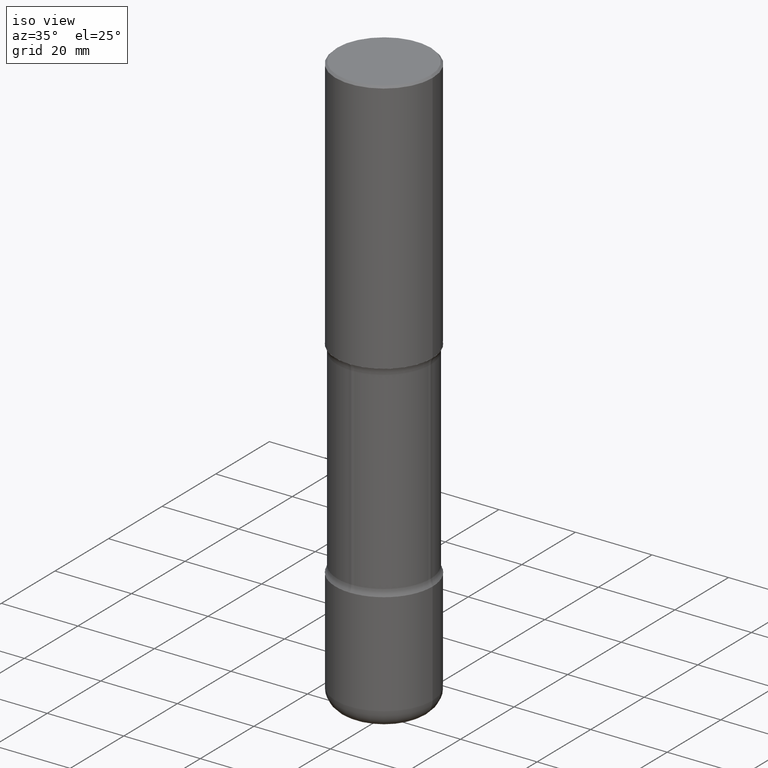
[diagram: clean part render]
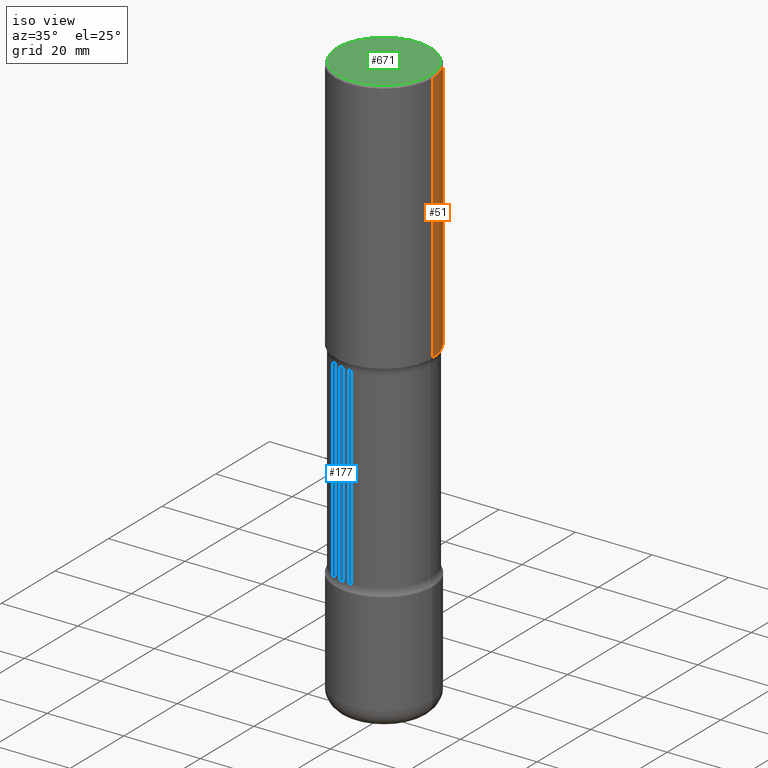
[diagram: same view with three faces highlighted in distinct colors, each labeled with its STEP entity id]
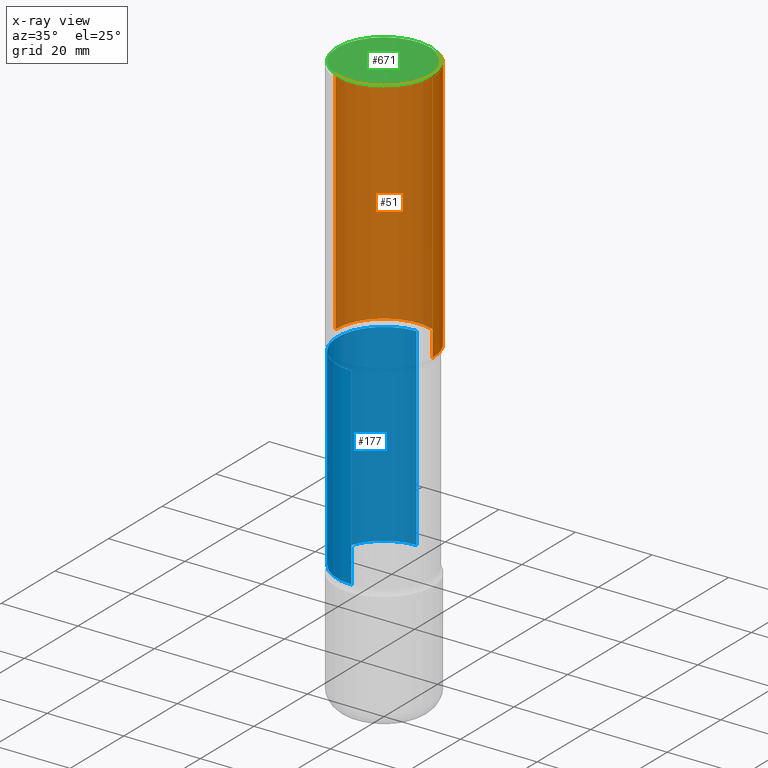
[diagram: x-ray of the same camera — body ghosted, the three highlighted faces saturated]
A machine part, iso view with three faces highlighted in distinct colors.
The next image is the same camera in x-ray (body ghosted, the three faces saturated) — at least one of them is partly hidden behind the body in this view.
Their STEP definitions:

[orange] entity #51 — the highlighted cylindrical surface (partial cylindrical patch) has radius 12.7 mm, axis along (-0, 0, 1).
#7 = VECTOR ( 'NONE', #96, 39.37007874015748143 ) ;
#12 = AXIS2_PLACEMENT_3D ( 'NONE', #806, #260, #743 ) ;
#51 = ADVANCED_FACE ( 'NONE', ( #625 ), #433, .T. ) ;
#55 = ORIENTED_EDGE ( 'NONE', *, *, #578, .T. ) ;
#61 = CARTESIAN_POINT ( 'NONE',  ( 0.000000000000000000, 0.000000000000000000, 0.000000000000000000 ) ) ;
#85 = EDGE_CURVE ( 'NONE', #553, #125, #286, .T. ) ;
#96 = DIRECTION ( 'NONE',  ( -2.445468806185136877E-29, 3.491481338843145188E-15, 1.000000000000000000 ) ) ;
#107 = VERTEX_POINT ( 'NONE', #488 ) ;
#115 = VECTOR ( 'NONE', #591, 39.37007874015748143 ) ;
#125 = VERTEX_POINT ( 'NONE', #441 ) ;
#174 = AXIS2_PLACEMENT_3D ( 'NONE', #61, #317, #554 ) ;
#210 = DIRECTION ( 'NONE',  ( 1.000000000000000000, -6.982962677686266711E-15, 0.000000000000000000 ) ) ;
#238 = CARTESIAN_POINT ( 'NONE',  ( 0.4999999999999998335, -3.491481338843132566E-15, 2.438088387897967336E-29 ) ) ;
#243 = EDGE_LOOP ( 'NONE', ( #539, #55, #259, #670 ) ) ;
#259 = ORIENTED_EDGE ( 'NONE', *, *, #85, .F. ) ;
#260 = DIRECTION ( 'NONE',  ( -2.445468806185136597E-29, 3.491481338843145583E-15, 1.000000000000000000 ) ) ;
#286 = CIRCLE ( 'NONE', #12, 0.4999999999999996669 ) ;
#317 = DIRECTION ( 'NONE',  ( -2.445468806185136597E-29, 3.491481338843145583E-15, 1.000000000000000000 ) ) ;
#353 = CARTESIAN_POINT ( 'NONE',  ( -0.4999999999999998335, 3.552713678800499746E-15, -2.459467545127452330E-29 ) ) ;
#407 = LINE ( 'NONE', #353, #7 ) ;
#410 = CARTESIAN_POINT ( 'NONE',  ( -0.5000000000000000000, -1.064770391819559223E-15, -2.625000000000000444 ) ) ;
#433 = CYLINDRICAL_SURFACE ( 'NONE', #174, 0.4999999999999998335 ) ;
#441 = CARTESIAN_POINT ( 'NONE',  ( -0.4999999999999996669, 3.421651712066267691E-15, -0.02000000000000010797 ) ) ;
#452 = CIRCLE ( 'NONE', #461, 0.5000000000000000000 ) ;
#461 = AXIS2_PLACEMENT_3D ( 'NONE', #683, #763, #210 ) ;
#488 = CARTESIAN_POINT ( 'NONE',  ( 0.5000000000000000000, -1.265661985330639155E-14, -2.625000000000000444 ) ) ;
#497 = EDGE_CURVE ( 'NONE', #107, #687, #452, .T. ) ;
#539 = ORIENTED_EDGE ( 'NONE', *, *, #497, .T. ) ;
#553 = VERTEX_POINT ( 'NONE', #760 ) ;
#554 = DIRECTION ( 'NONE',  ( 1.000000000000000000, -6.982962677686267499E-15, 4.876176775795936353E-29 ) ) ;
#578 = EDGE_CURVE ( 'NONE', #687, #125, #407, .T. ) ;
#582 = EDGE_CURVE ( 'NONE', #107, #553, #707, .T. ) ;
#591 = DIRECTION ( 'NONE',  ( -2.445468806185136877E-29, 3.491481338843145188E-15, 1.000000000000000000 ) ) ;
#625 = FACE_OUTER_BOUND ( 'NONE', #243, .T. ) ;
#670 = ORIENTED_EDGE ( 'NONE', *, *, #582, .F. ) ;
#683 = CARTESIAN_POINT ( 'NONE',  ( 6.419355616235984688E-29, -9.165138514463258190E-15, -2.625000000000000444 ) ) ;
#687 = VERTEX_POINT ( 'NONE', #410 ) ;
#707 = LINE ( 'NONE', #238, #115 ) ;
#743 = DIRECTION ( 'NONE',  ( 1.000000000000000000, -6.982962677686266711E-15, 0.000000000000000000 ) ) ;
#760 = CARTESIAN_POINT ( 'NONE',  ( 0.4999999999999996669, -3.500078625662626713E-15, -0.02000000000000010797 ) ) ;
#763 = DIRECTION ( 'NONE',  ( -2.445468806185136597E-29, 3.491481338843145583E-15, 1.000000000000000000 ) ) ;
#806 = CARTESIAN_POINT ( 'NONE',  ( 4.890937612370299433E-31, -6.982962677686328587E-17, -0.02000000000000010797 ) ) ;

[blue] entity #177 — the highlighted cylindrical surface (partial cylindrical patch) has radius 12.192 mm, axis along (0, -0, -1).
#33 = EDGE_CURVE ( 'NONE', #311, #494, #176, .T. ) ;
#40 = ORIENTED_EDGE ( 'NONE', *, *, #392, .T. ) ;
#42 = DIRECTION ( 'NONE',  ( 6.982962677686265922E-15, 1.000000000000000000, -2.276539994720218757E-15 ) ) ;
#45 = VERTEX_POINT ( 'NONE', #636 ) ;
#113 = CIRCLE ( 'NONE', #464, 0.4800000000000001488 ) ;
#176 = LINE ( 'NONE', #678, #702 ) ;
#177 = ADVANCED_FACE ( 'NONE', ( #196 ), #316, .T. ) ;
#179 = ORIENTED_EDGE ( 'NONE', *, *, #226, .F. ) ;
#193 = DIRECTION ( 'NONE',  ( 2.513195084323527144E-29, -3.394493453808608059E-15, -1.000000000000000000 ) ) ;
#196 = FACE_OUTER_BOUND ( 'NONE', #620, .T. ) ;
#213 = DIRECTION ( 'NONE',  ( 2.513195084323526863E-29, -3.394493453808608059E-15, -1.000000000000000000 ) ) ;
#218 = AXIS2_PLACEMENT_3D ( 'NONE', #581, #213, #753 ) ;
#226 = EDGE_CURVE ( 'NONE', #494, #45, #113, .T. ) ;
#311 = VERTEX_POINT ( 'NONE', #476 ) ;
#316 = CYLINDRICAL_SURFACE ( 'NONE', #538, 0.4800000000000001488 ) ;
#392 = EDGE_CURVE ( 'NONE', #311, #727, #677, .T. ) ;
#418 = DIRECTION ( 'NONE',  ( 2.513195084323527144E-29, -3.394493453808608059E-15, -1.000000000000000000 ) ) ;
#420 = LINE ( 'NONE', #435, #736 ) ;
#435 = CARTESIAN_POINT ( 'NONE',  ( 3.351822085289556248E-15, 0.4799999999999793321, -5.990920599932145763 ) ) ;
#464 = AXIS2_PLACEMENT_3D ( 'NONE', #523, #701, #773 ) ;
#470 = ORIENTED_EDGE ( 'NONE', *, *, #722, .T. ) ;
#476 = CARTESIAN_POINT ( 'NONE',  ( -3.361644018907988919E-15, -0.4800000000000097522, -2.692823299831252459 ) ) ;
#494 = VERTEX_POINT ( 'NONE', #514 ) ;
#514 = CARTESIAN_POINT ( 'NONE',  ( -3.361644018907934882E-15, -0.4800000000000164690, -4.682176700168746208 ) ) ;
#523 = CARTESIAN_POINT ( 'NONE',  ( 1.144552364564089489E-28, -1.635431061221206023E-14, -4.682176700168747985 ) ) ;
#538 = AXIS2_PLACEMENT_3D ( 'NONE', #600, #649, #42 ) ;
#581 = CARTESIAN_POINT ( 'NONE',  ( 6.445890458930413557E-29, -9.601463517454541281E-15, -2.692823299831254236 ) ) ;
#600 = CARTESIAN_POINT ( 'NONE',  ( 1.473465238116466876E-28, -2.079683321267085678E-14, -5.990920599932144874 ) ) ;
#620 = EDGE_LOOP ( 'NONE', ( #723, #40, #470, #179 ) ) ;
#636 = CARTESIAN_POINT ( 'NONE',  ( 3.351822085289523116E-15, 0.4799999999999838285, -4.682176700168749761 ) ) ;
#649 = DIRECTION ( 'NONE',  ( 2.513195084323526863E-29, -3.394493453808608059E-15, -1.000000000000000000 ) ) ;
#677 = CIRCLE ( 'NONE', #218, 0.4800000000000001488 ) ;
#678 = CARTESIAN_POINT ( 'NONE',  ( -3.293039038930187996E-15, -0.4800000000000209655, -5.990920599932143986 ) ) ;
#701 = DIRECTION ( 'NONE',  ( 2.513195084323526863E-29, -3.394493453808608059E-15, -1.000000000000000000 ) ) ;
#702 = VECTOR ( 'NONE', #418, 39.37007874015748143 ) ;
#722 = EDGE_CURVE ( 'NONE', #727, #45, #420, .T. ) ;
#723 = ORIENTED_EDGE ( 'NONE', *, *, #33, .F. ) ;
#727 = VERTEX_POINT ( 'NONE', #793 ) ;
#736 = VECTOR ( 'NONE', #193, 39.37007874015748143 ) ;
#753 = DIRECTION ( 'NONE',  ( 6.982962677686265922E-15, 1.000000000000000000, -3.414809992080327938E-15 ) ) ;
#773 = DIRECTION ( 'NONE',  ( 6.982962677686265922E-15, 1.000000000000000000, -3.414809992080327938E-15 ) ) ;
#793 = CARTESIAN_POINT ( 'NONE',  ( 3.351822085289473418E-15, 0.4799999999999904898, -2.692823299831256012 ) ) ;

[green] entity #671 — the highlighted planar face has unit normal (0, -0, -1).
#8 = EDGE_LOOP ( 'NONE', ( #787, #21 ) ) ;
#21 = ORIENTED_EDGE ( 'NONE', *, *, #271, .T. ) ;
#22 = CARTESIAN_POINT ( 'NONE',  ( -0.4799999999999996492, 3.386736898677836436E-15, 1.280553747027767124E-17 ) ) ;
#92 = DIRECTION ( 'NONE',  ( 2.438088387897960049E-29, -3.491481338843145188E-15, -1.000000000000000000 ) ) ;
#147 = DIRECTION ( 'NONE',  ( 1.000000000000000000, -6.982962677686267499E-15, 4.876036955247132767E-29 ) ) ;
#234 = CARTESIAN_POINT ( 'NONE',  ( -3.131554243005659264E-46, 4.471029511141341874E-32, 1.280553747030123384E-17 ) ) ;
#244 = CIRCLE ( 'NONE', #784, 0.4799999999999996492 ) ;
#271 = EDGE_CURVE ( 'NONE', #363, #537, #605, .T. ) ;
#363 = VERTEX_POINT ( 'NONE', #791 ) ;
#408 = PLANE ( 'NONE',  #749 ) ;
#463 = DIRECTION ( 'NONE',  ( -1.000000000000000000, 6.982962677686265922E-15, -4.876176775795935793E-29 ) ) ;
#465 = DIRECTION ( 'NONE',  ( -2.445468806185136597E-29, 3.491481338843145583E-15, 1.000000000000000000 ) ) ;
#534 = DIRECTION ( 'NONE',  ( -2.445468806185136597E-29, 3.491481338843145583E-15, 1.000000000000000000 ) ) ;
#537 = VERTEX_POINT ( 'NONE', #22 ) ;
#601 = CARTESIAN_POINT ( 'NONE',  ( -3.131554243005659264E-46, 4.471029511141341874E-32, 1.280553747030123384E-17 ) ) ;
#605 = CIRCLE ( 'NONE', #734, 0.4799999999999996492 ) ;
#611 = DIRECTION ( 'NONE',  ( 1.000000000000000000, -6.982962677686267499E-15, 4.876036955247132767E-29 ) ) ;
#655 = CARTESIAN_POINT ( 'NONE',  ( 3.351822085289405181E-15, 0.4799999999999996492, -1.669508273909558064E-15 ) ) ;
#671 = ADVANCED_FACE ( 'NONE', ( #711 ), #408, .F. ) ;
#711 = FACE_OUTER_BOUND ( 'NONE', #8, .T. ) ;
#734 = AXIS2_PLACEMENT_3D ( 'NONE', #234, #465, #147 ) ;
#739 = EDGE_CURVE ( 'NONE', #537, #363, #244, .T. ) ;
#749 = AXIS2_PLACEMENT_3D ( 'NONE', #655, #92, #463 ) ;
#784 = AXIS2_PLACEMENT_3D ( 'NONE', #601, #534, #611 ) ;
#787 = ORIENTED_EDGE ( 'NONE', *, *, #739, .T. ) ;
#791 = CARTESIAN_POINT ( 'NONE',  ( 0.4799999999999996492, -3.396558832296479732E-15, 1.280553747032483033E-17 ) ) ;